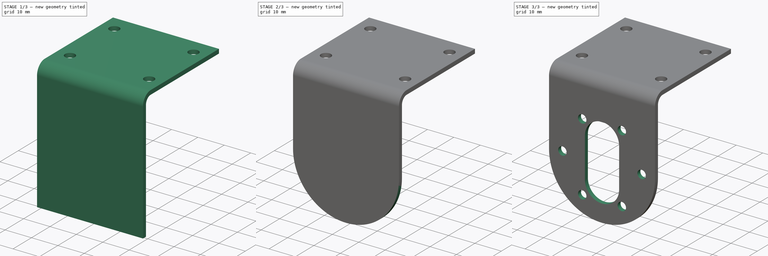
[diagram: build sequence overview — one tinted view per stage of 3, left to right]
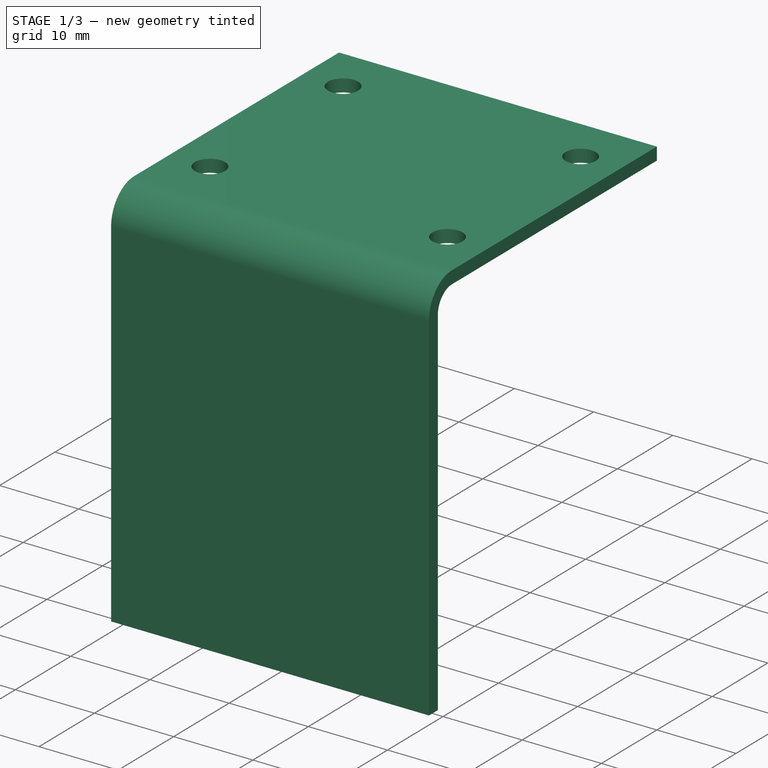
[diagram: stage 1 of 3 — iso view after this stage's code; geometry added in this stage tinted green]
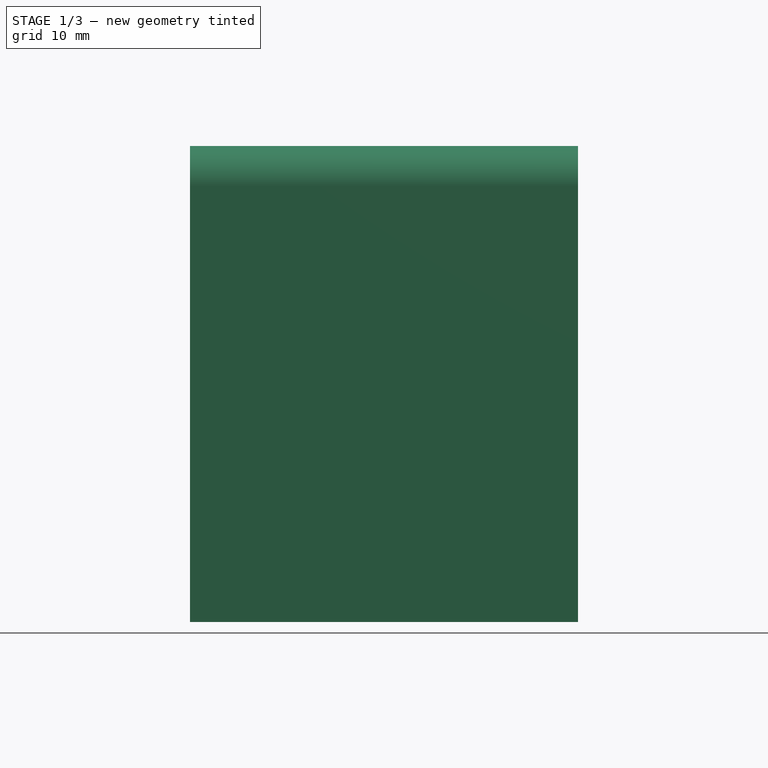
[diagram: stage 1 of 3 — front view after this stage's code; geometry added in this stage tinted green]
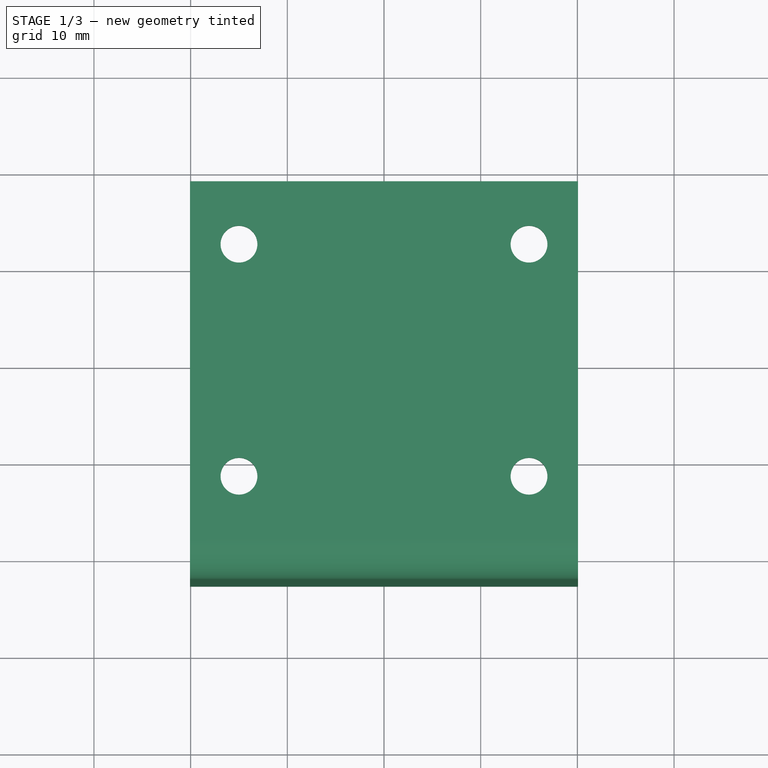
[diagram: stage 1 of 3 — top view after this stage's code; geometry added in this stage tinted green]
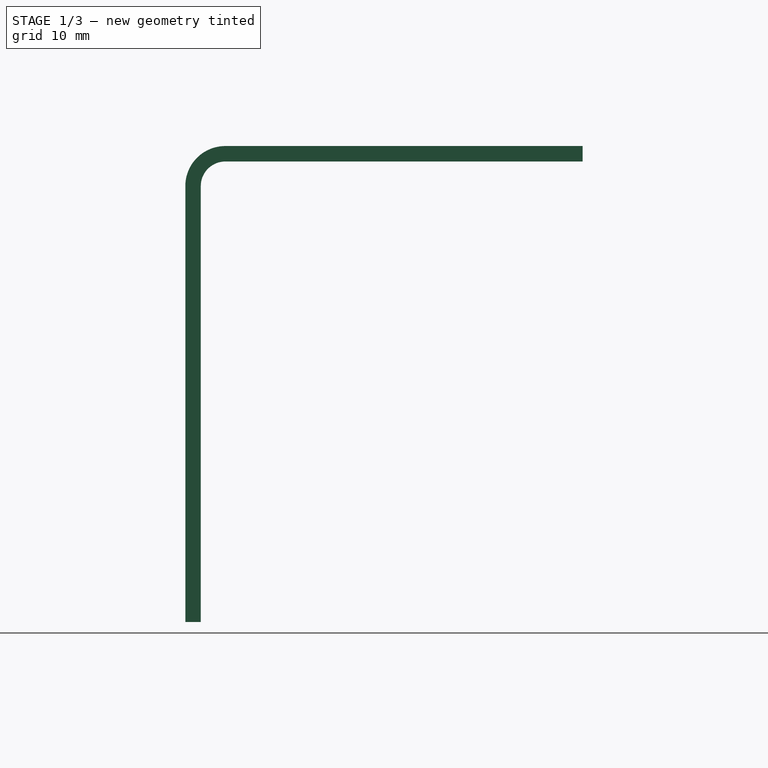
[diagram: stage 1 of 3 — right view after this stage's code; geometry added in this stage tinted green]
FCSTD DOCUMENT  (FreeCAD 0.20R27861 (Git))
Label: Motor Mount
License: All rights reserved
LicenseURL: http://en.wikipedia.org/wiki/All_rights_reserved
objects: Sketcher::SketchObject×4, PartDesign::Pocket×3, PartDesign::FeaturePython×2, PartDesign::Body×1
note: 13 computed .brp shape members not serialized (recipe doc carries the construction recipe); baked Part::Feature solids carry a one-line shape summary decoded from their .brp

FEATURE [Sketcher::SketchObject] Sketch
  FullyConstrained = true
  MapMode = 5
  Support = -> [XY_Plane]
  sketch-geometry (13):
    g0: LineSegment StartX=-20.066 StartY=-18.4785 StartZ=0 EndX=-20.066 EndY=18.4785 EndZ=0
    g1: LineSegment StartX=-20.066 StartY=18.4785 StartZ=0 EndX=20.066 EndY=18.4785 EndZ=0
    g2: LineSegment StartX=20.066 StartY=18.4785 StartZ=0 EndX=20.066 EndY=-18.4785 EndZ=0
    g3: LineSegment StartX=20.066 StartY=-18.4785 StartZ=0 EndX=-20.066 EndY=-18.4785 EndZ=0
    g4: GeomPoint X=0 Y=0 Z=0
    g5: Circle CenterX=-14.9987 CenterY=11.9685 CenterZ=0 NormalX=0 NormalY=0 NormalZ=1 AngleXU=0 Radius=1.905
    g6: Circle CenterX=14.9987 CenterY=11.9685 CenterZ=0 NormalX=0 NormalY=0 NormalZ=1 AngleXU=0 Radius=1.905
    g7: Circle CenterX=14.9987 CenterY=-12.0345 CenterZ=0 NormalX=0 NormalY=0 NormalZ=1 AngleXU=0 Radius=1.905
    g8: Circle CenterX=-14.9987 CenterY=-12.0345 CenterZ=0 NormalX=0 NormalY=0 NormalZ=1 AngleXU=0 Radius=1.905
    g9: LineSegment StartX=-14.9987 StartY=11.9685 StartZ=0 EndX=14.9987 EndY=11.9685 EndZ=0
    g10: LineSegment StartX=14.9987 StartY=11.9685 StartZ=0 EndX=14.9987 EndY=-12.0345 EndZ=0
    g11: LineSegment StartX=14.9987 StartY=-12.0345 StartZ=0 EndX=-14.9987 EndY=-12.0345 EndZ=0
    g12: LineSegment StartX=-14.9987 StartY=-12.0345 StartZ=0 EndX=-14.9987 EndY=11.9685 EndZ=0
  constraints (31):
    c: Coincident(g0,g1)
    c: Coincident(g1,g2)
    c: Coincident(g2,g3)
    c: Coincident(g3,g0)
    c: Horizontal(g1)
    c: Horizontal(g3)
    c: Vertical(g0)
    c: Vertical(g2)
    c: Symmetric(g1,g0,g4)
    c: Coincident(g4,g-1)
    c: Distance(g1) = 40.132
    c: Coincident(g9,g10)
    c: Coincident(g10,g11)
    c: Coincident(g11,g12)
    c: Coincident(g12,g9)
    c: Horizontal(g9)
    c: Vertical(g10)
    c: Vertical(g12)
    c: Coincident(g9,g5)
    c: Coincident(g10,g7)
    c: Coincident(g6,g9)
    c: Coincident(g11,g8)
    c: Equal(g8,g5)
    c: Equal(g5,g6)
    c: Equal(g6,g7)
    c: Diameter(g5) = 3.81
    c: Distance(g12) = 24.003
    c: Distance(g9) = 29.9974
    c: Distance(g5,g1) = 6.51
    c: Symmetric(g8,g7,g-2)
    c: Distance(g2) = 36.957
FEATURE [PartDesign::FeaturePython] BaseBend  # WARN: FeaturePython — macro-defined, semantics opaque (R4)
  BendSide = 0
  BendSketch = -> Sketch
  MidPlane = false
  Reverse = false
  length = 100
  radius = 2
  thickness = 1.6
FEATURE [PartDesign::FeaturePython] Bend  # WARN: FeaturePython — macro-defined, semantics opaque (R4)
  AutoMiter = true
  BaseFeature = -> BaseBend
  BendType = 0
  LengthList = [45.085]
  ReliefFactor = 0.7
  UseReliefFactor = false
  angle = 90
  baseObject = -> BaseBend [Edge12]
  bendAList = [90]
  extend1 = 0
  extend2 = 0
  gap1 = 0
  gap2 = 0
  invert = false
  kfactor = 0.5
  length = 45.085
  maxExtendDist = 5
  minGap = 0.1
  minReliefGap = 1
  miterangle1 = 0
  miterangle2 = 0
  offset = 0
  radius = 2.54
  reliefType = 0
  reliefd = 1
  reliefw = 0.8
  sketchflip = false
  sketchinvert = false
  unfold = false
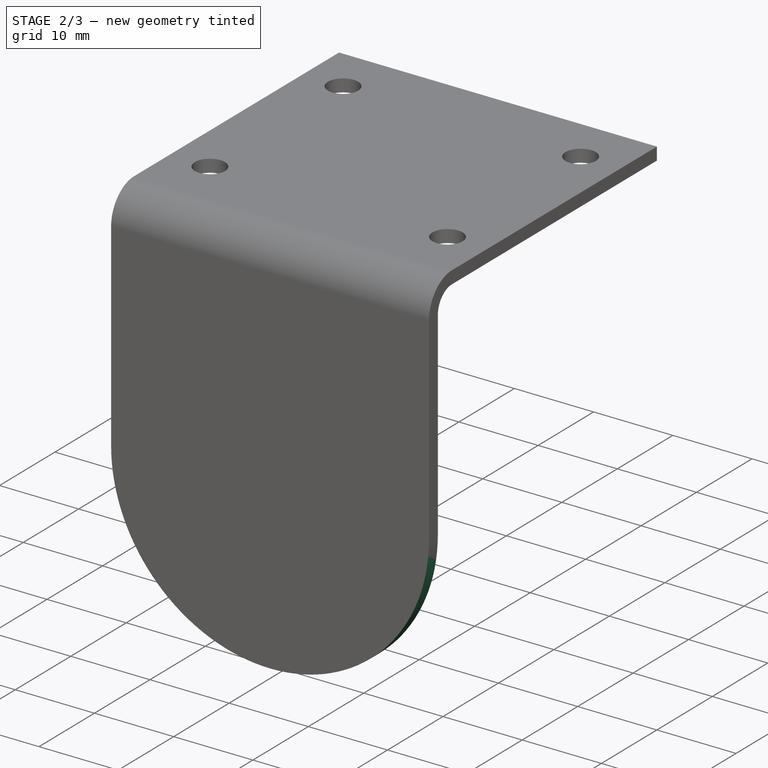
[diagram: stage 2 of 3 — iso view after this stage's code; geometry added in this stage tinted green]
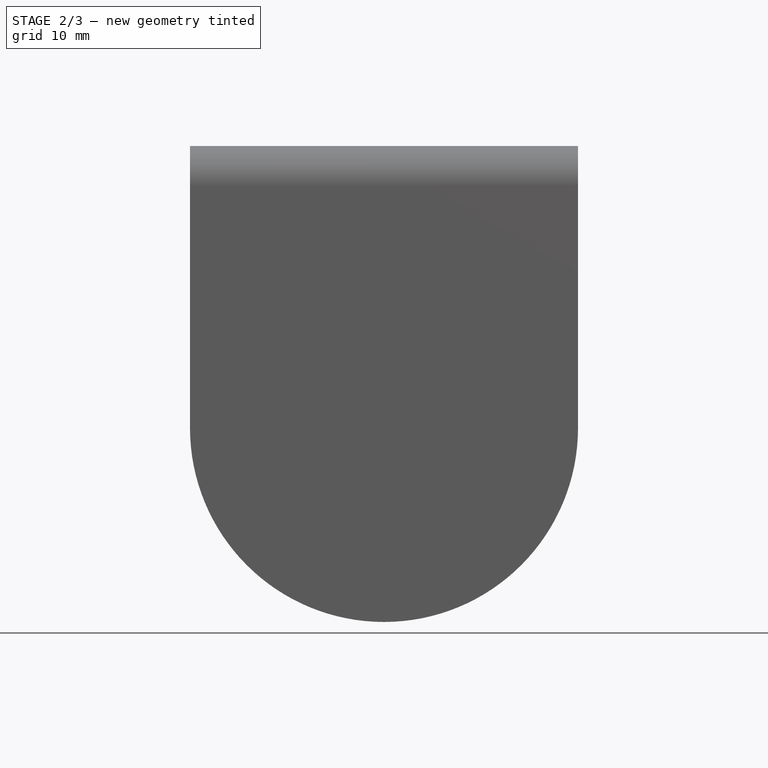
[diagram: stage 2 of 3 — front view after this stage's code; geometry added in this stage tinted green]
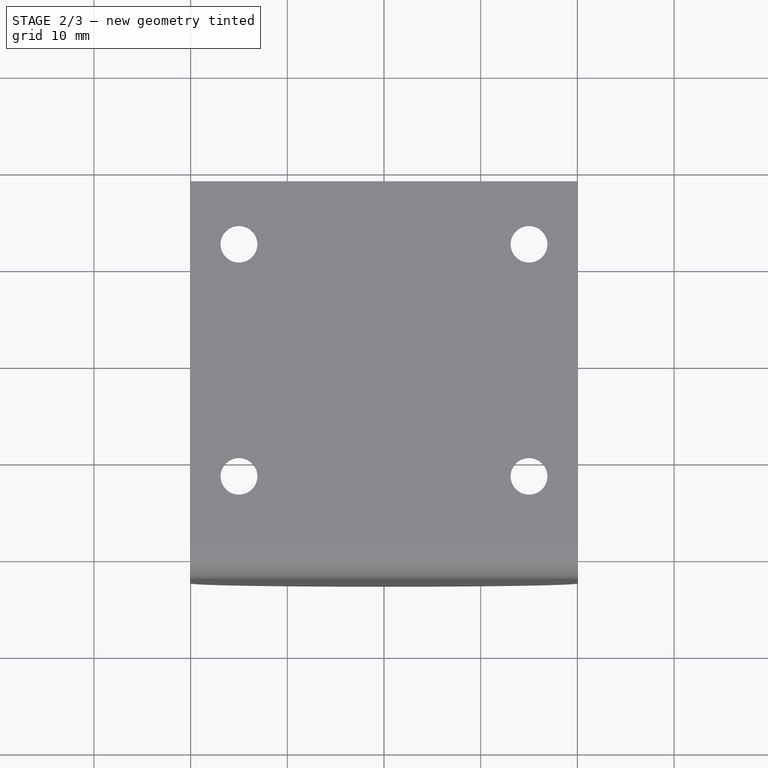
[diagram: stage 2 of 3 — top view after this stage's code; geometry added in this stage tinted green]
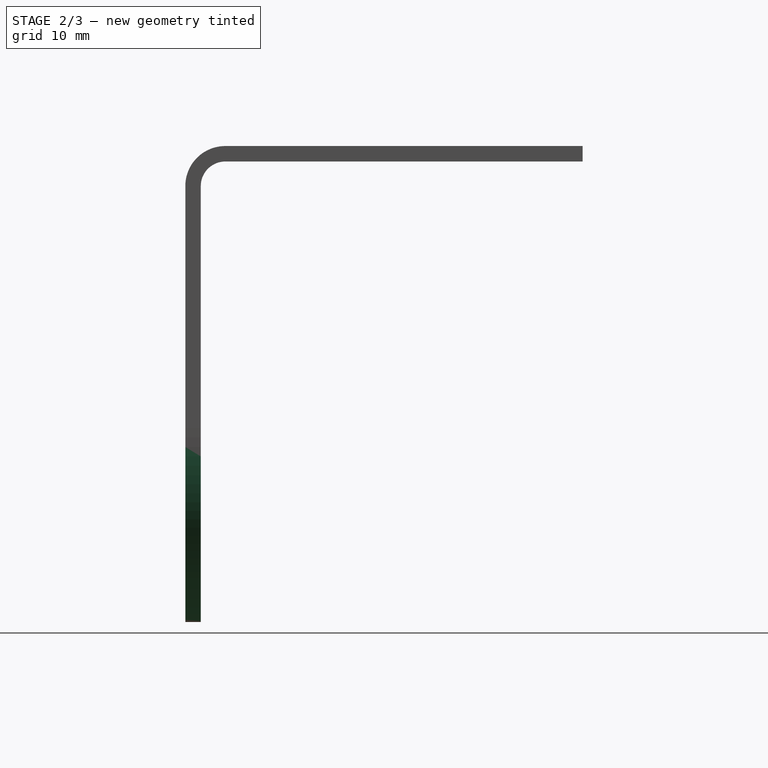
[diagram: stage 2 of 3 — right view after this stage's code; geometry added in this stage tinted green]
FEATURE [Sketcher::SketchObject] Sketch001
  ExternalGeometry = -> [Bend]
  FullyConstrained = true
  MapMode = 5
  Placement = pos=(0,-22.6185,2.5e-15) rot=(1,0,0;1.5708rad)
  Support = -> [Bend]
  sketch-geometry (4):
    g0: ArcOfCircle CenterX=0 CenterY=-27.559 CenterZ=0 NormalX=0 NormalY=0 NormalZ=1 AngleXU=0 Radius=20.066 StartAngle=3.14159 EndAngle=6.28319
    g1: LineSegment StartX=-20.066 StartY=-27.559 StartZ=0 EndX=-20.066 EndY=-47.625 EndZ=0
    g2: LineSegment StartX=20.066 StartY=-27.559 StartZ=0 EndX=20.066 EndY=-47.625 EndZ=0
    g3: LineSegment StartX=-20.066 StartY=-47.625 StartZ=0 EndX=20.066 EndY=-47.625 EndZ=0
  constraints (9):
    c: PointOnObject(g0,g-2)
    c: Coincident(g1,g-3)
    c: Vertical(g1)
    c: Coincident(g2,g-3)
    c: Tangent(g2,g0) = 1.5708
    c: Tangent(g1,g0) = -1.5708
    c: Tangent(g0,g-3)
    c: Coincident(g3,g1)
    c: Coincident(g3,g2)
FEATURE [PartDesign::Pocket] Pocket
  BaseFeature = -> Bend
  Direction = (0,1,-2e-16)
  Length = 5.0038
  Length2 = 5.0038
  Profile = -> Sketch001
  ReferenceAxis = -> Sketch001 [N_Axis]
  Type = 1
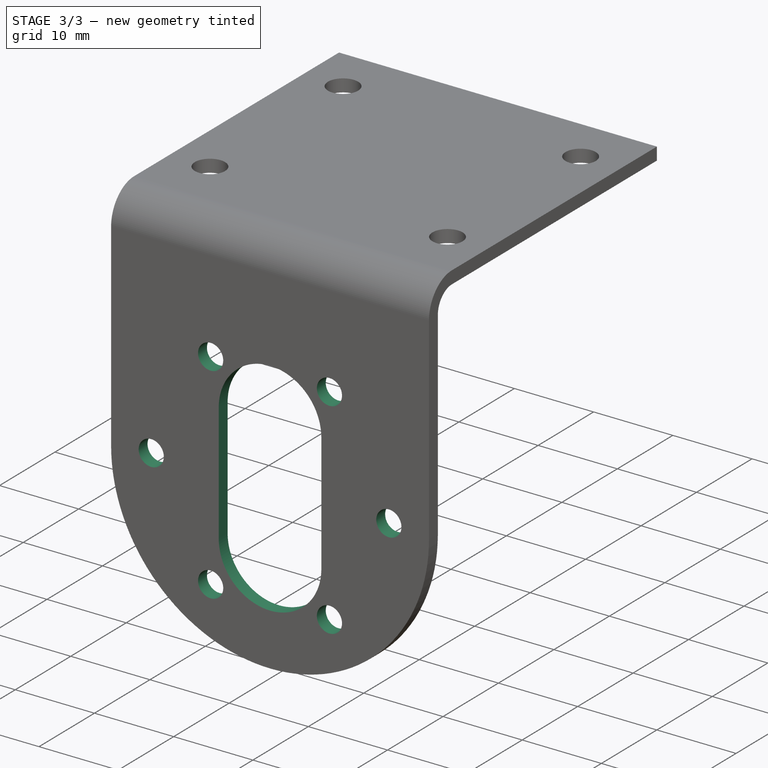
[diagram: stage 3 of 3 — iso view after this stage's code; geometry added in this stage tinted green]
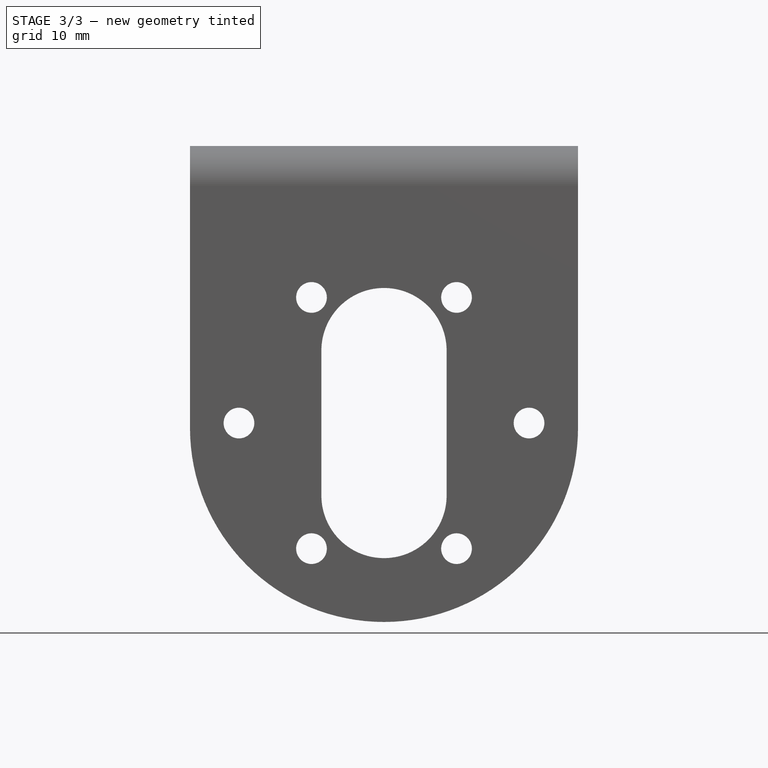
[diagram: stage 3 of 3 — front view after this stage's code; geometry added in this stage tinted green]
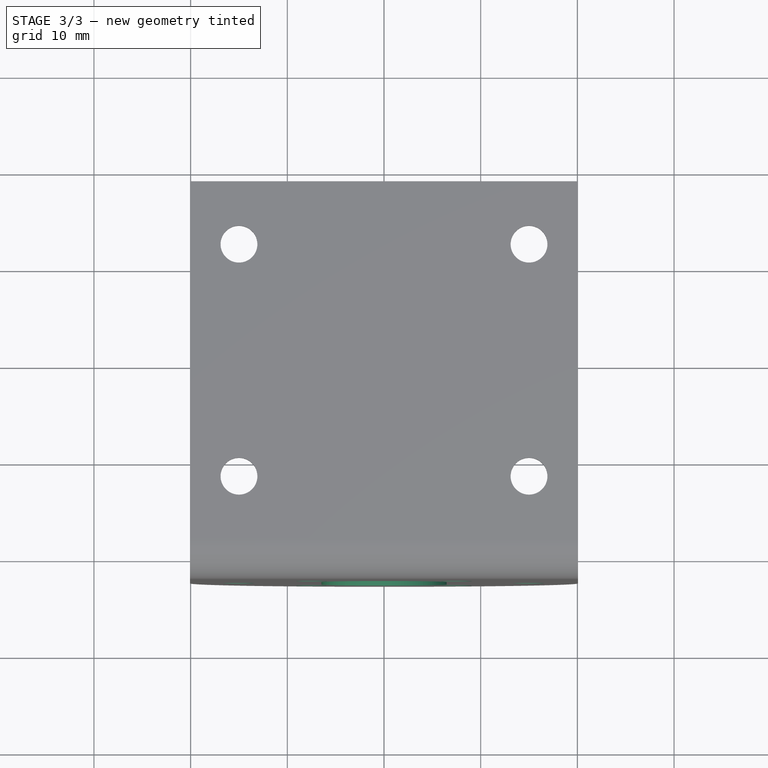
[diagram: stage 3 of 3 — top view after this stage's code; geometry added in this stage tinted green]
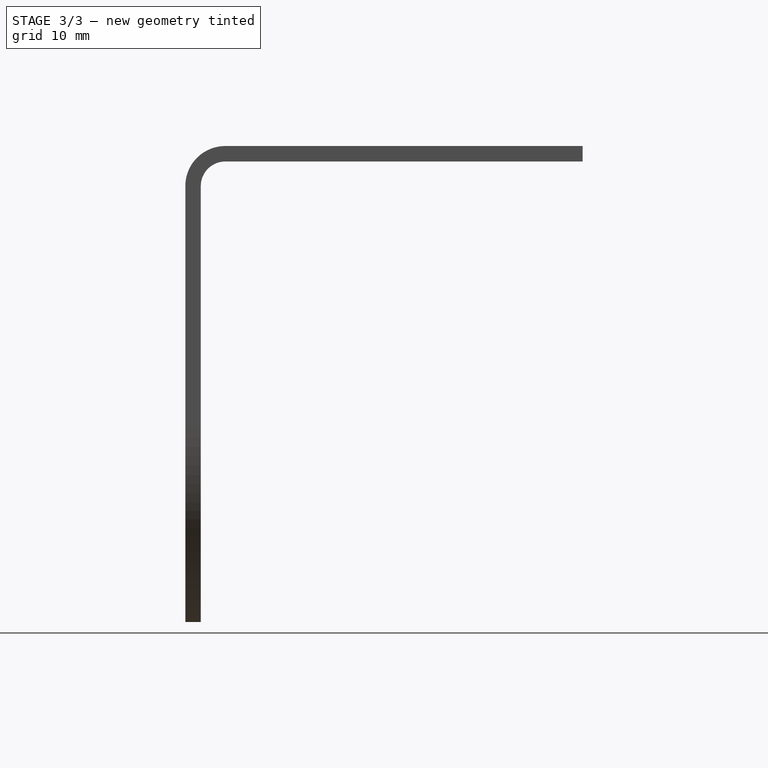
[diagram: stage 3 of 3 — right view after this stage's code; geometry added in this stage tinted green]
FEATURE [Sketcher::SketchObject] Sketch002
  ExternalGeometry = -> [Pocket]
  FullyConstrained = true
  MapMode = 5
  Placement = pos=(0,-22.6185,2.5e-15) rot=(1,0,0;1.5708rad)
  Support = -> [Pocket]
  sketch-geometry (4):
    g0: ArcOfCircle CenterX=0 CenterY=-19.558 CenterZ=0 NormalX=0 NormalY=0 NormalZ=1 AngleXU=0 Radius=6.477 StartAngle=0 EndAngle=3.14159
    g1: ArcOfCircle CenterX=0 CenterY=-34.544 CenterZ=0 NormalX=0 NormalY=0 NormalZ=1 AngleXU=0 Radius=6.477 StartAngle=3.14159 EndAngle=6.28319
    g2: LineSegment StartX=6.477 StartY=-19.558 StartZ=0 EndX=6.477 EndY=-34.544 EndZ=0
    g3: LineSegment StartX=-6.477 StartY=-19.558 StartZ=0 EndX=-6.477 EndY=-34.544 EndZ=0
  constraints (10):
    c: PointOnObject(g0,g-2)
    c: PointOnObject(g1,g-2)
    c: Vertical(g2)
    c: Distance(g1,g1) = 12.954
    c: Tangent(g2,g1) = 1.5708
    c: Tangent(g3,g1) = -1.5708
    c: Tangent(g3,g0) = -1.5708
    c: Tangent(g2,g0) = 1.5708
    c: Distance(g2) = 14.986
    c: Distance(g-3,g1) = 13.081
FEATURE [PartDesign::Pocket] Pocket001
  BaseFeature = -> Pocket
  Direction = (0,1,-2e-16)
  Length = 5.0038
  Length2 = 5.0038
  Profile = -> Sketch002
  ReferenceAxis = -> Sketch002 [N_Axis]
  Type = 0
FEATURE [Sketcher::SketchObject] Sketch003
  ExternalGeometry = -> [Pocket001]
  FullyConstrained = true
  MapMode = 5
  Placement = pos=(0,-22.6185,2.5e-15) rot=(1,0,0;1.5708rad)
  Support = -> [Pocket001]
  sketch-geometry (13):
    g0: Circle CenterX=0 CenterY=-27.051 CenterZ=0 NormalX=0 NormalY=0 NormalZ=1 AngleXU=0 Radius=15
    g1: Circle CenterX=7.5 CenterY=-14.0606 CenterZ=0 NormalX=0 NormalY=0 NormalZ=1 AngleXU=0 Radius=1.5875
    g2: Circle CenterX=-7.5 CenterY=-14.0606 CenterZ=0 NormalX=0 NormalY=0 NormalZ=1 AngleXU=0 Radius=1.5875
    g3: Circle CenterX=-15 CenterY=-27.051 CenterZ=0 NormalX=0 NormalY=0 NormalZ=1 AngleXU=0 Radius=1.5875
    g4: Circle CenterX=-7.5 CenterY=-40.0414 CenterZ=0 NormalX=0 NormalY=0 NormalZ=1 AngleXU=0 Radius=1.5875
    g5: Circle CenterX=7.5 CenterY=-40.0414 CenterZ=0 NormalX=0 NormalY=0 NormalZ=1 AngleXU=0 Radius=1.5875
    g6: Circle CenterX=15 CenterY=-27.051 CenterZ=0 NormalX=0 NormalY=0 NormalZ=1 AngleXU=0 Radius=1.5875
    g7: LineSegment StartX=7.5 StartY=-14.0606 StartZ=0 EndX=-7.5 EndY=-14.0606 EndZ=0
    g8: LineSegment StartX=-7.5 StartY=-14.0606 StartZ=0 EndX=-15 EndY=-27.051 EndZ=0
    g9: LineSegment StartX=-15 StartY=-27.051 StartZ=0 EndX=-7.5 EndY=-40.0414 EndZ=0
    g10: LineSegment StartX=-7.5 StartY=-40.0414 StartZ=0 EndX=7.5 EndY=-40.0414 EndZ=0
    g11: LineSegment StartX=7.5 StartY=-40.0414 StartZ=0 EndX=15 EndY=-27.051 EndZ=0
    g12: LineSegment StartX=15 StartY=-27.051 StartZ=0 EndX=7.5 EndY=-14.0606 EndZ=0
  constraints (32):
    c: PointOnObject(g1,g0)
    c: PointOnObject(g2,g0)
    c: PointOnObject(g3,g0)
    c: PointOnObject(g4,g0)
    c: PointOnObject(g5,g0)
    c: PointOnObject(g6,g0)
    c: Equal(g6,g1)
    c: Equal(g1,g2)
    c: Equal(g2,g3)
    c: Equal(g3,g4)
    c: Equal(g4,g5)
    c: Diameter(g0) = 30
    c: Coincident(g7,g1)
    c: Coincident(g7,g2)
    c: Horizontal(g7)
    c: Coincident(g8,g2)
    c: Coincident(g8,g3)
    c: Coincident(g9,g3)
    c: Coincident(g9,g4)
    c: Coincident(g10,g4)
    c: Coincident(g10,g5)
    c: Horizontal(g10)
    c: Coincident(g11,g5)
    c: Coincident(g11,g6)
    c: Coincident(g12,g6)
    c: Coincident(g12,g1)
    c: Equal(g7,g8)
    c: Equal(g8,g9)
    c: Equal(g9,g10)
    c: Equal(g10,g11)
    c: Diameter(g2) = 3.175
    c: Symmetric(g-4,g-3,g0)
FEATURE [PartDesign::Pocket] Pocket002
  BaseFeature = -> Pocket001
  Direction = (0,1,-2e-16)
  Length = 5.0038
  Length2 = 5.0038
  Profile = -> Sketch003
  ReferenceAxis = -> Sketch003 [N_Axis]
  Type = 0
FEATURE [PartDesign::Body] Body  label="MotorMountBody"
  Group = -> [Sketch,BaseBend,Bend,Sketch001,Pocket,Sketch002,Pocket001,Sketch003,Pocket002]
  Origin = -> Origin
  Tip = -> Pocket002
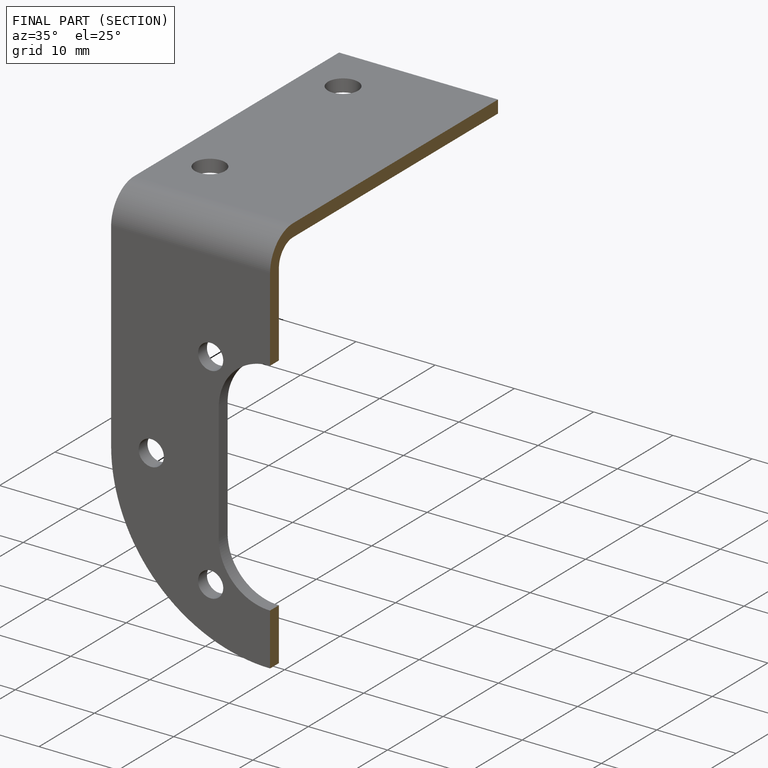
[diagram: finished part — half-section view (interior)]
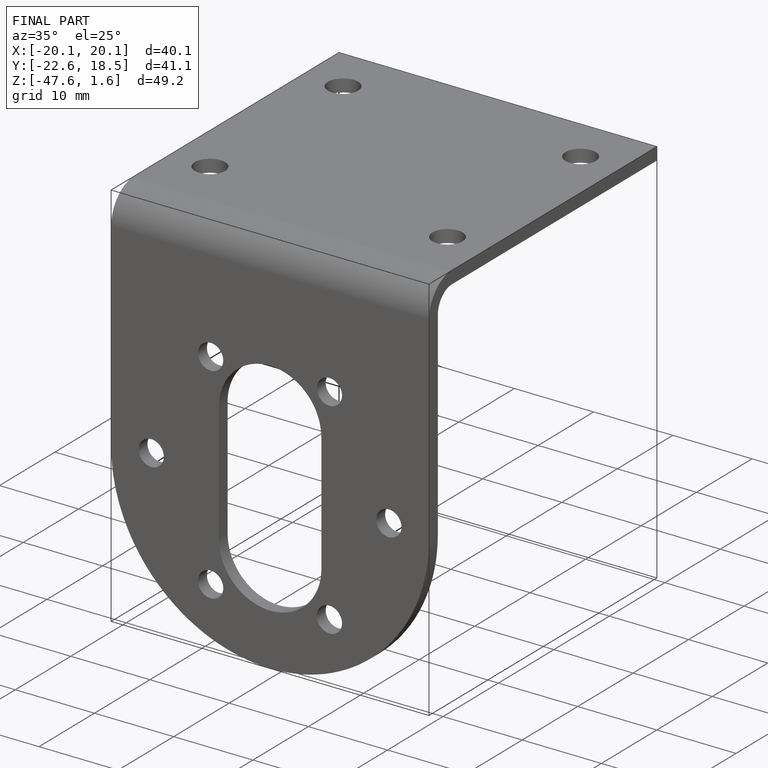
[diagram: finished part — iso view with bounding-box wireframe]
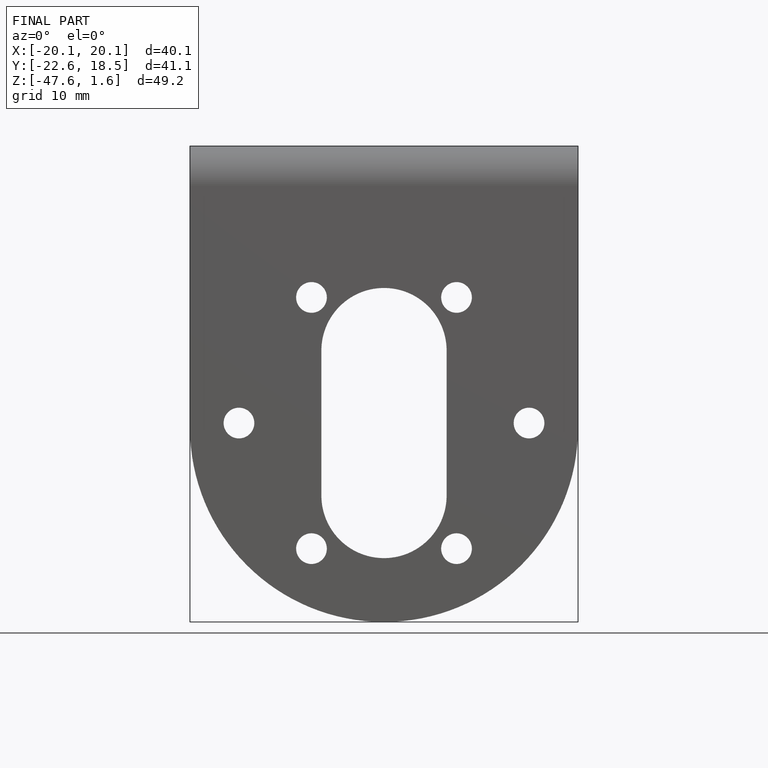
[diagram: finished part — front view with bounding-box wireframe]
